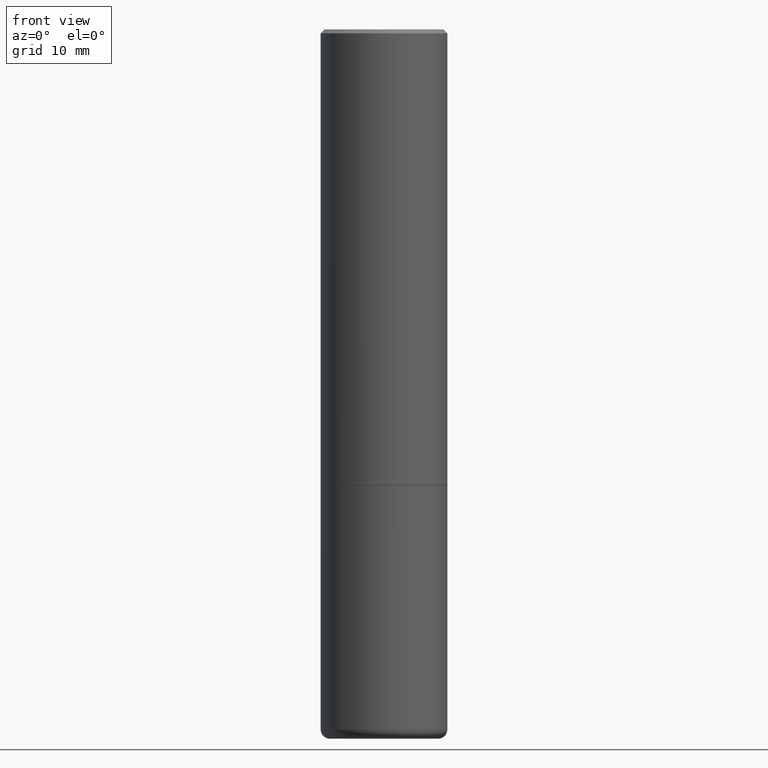
[diagram: clean part render]
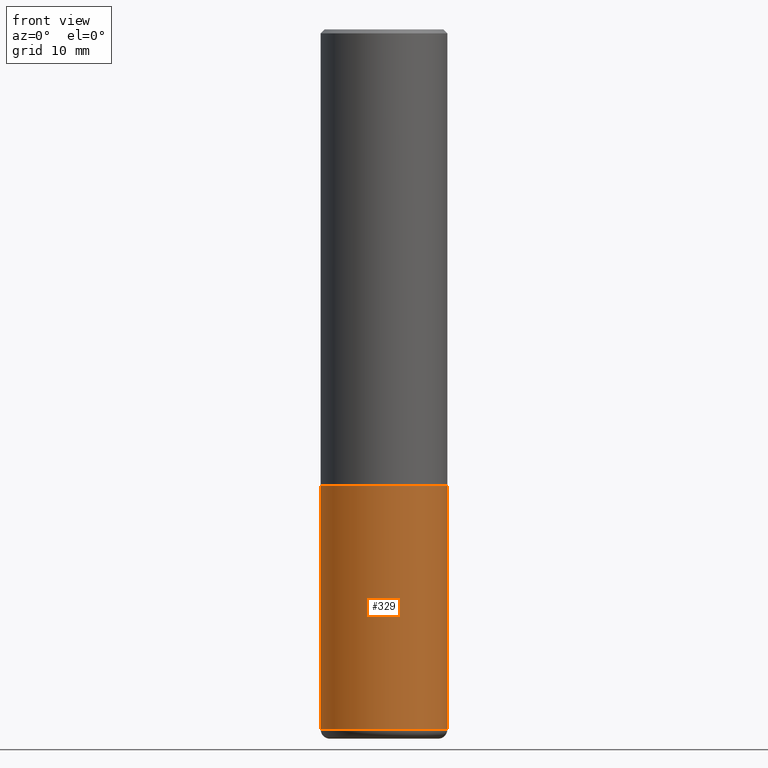
[diagram: same view with one face highlighted and labeled with its STEP entity id]
A machine part, front view. The second image highlights one B-rep face of the part: STEP entity #329.
In plain terms, the highlighted cylindrical surface (partial cylindrical patch) has radius 7.9375 mm, axis along (-0, 0, 1).
Its self-contained STEP definition (entity closure, byte-faithful):
#5 = CIRCLE ( 'NONE', #223, 0.3125000000000000000 ) ;
#10 = CARTESIAN_POINT ( 'NONE',  ( -0.3125000000000000000, -7.739112131260931893E-15, -3.455061670936044216 ) ) ;
#13 = EDGE_CURVE ( 'NONE', #442, #102, #303, .T. ) ;
#33 = ORIENTED_EDGE ( 'NONE', *, *, #13, .T. ) ;
#41 = CARTESIAN_POINT ( 'NONE',  ( -0.3125000000000000000, 2.220446049250313081E-15, -1.537167215704658232E-29 ) ) ;
#58 = ORIENTED_EDGE ( 'NONE', *, *, #365, .F. ) ;
#66 = CARTESIAN_POINT ( 'NONE',  ( -0.3125000000000000000, -7.739112131260931893E-15, -2.249999999999999556 ) ) ;
#102 = VERTEX_POINT ( 'NONE', #148 ) ;
#108 = DIRECTION ( 'NONE',  ( -2.445468806185136877E-29, 3.491481338843145188E-15, 1.000000000000000000 ) ) ;
#109 = DIRECTION ( 'NONE',  ( -2.445468806185136597E-29, 3.491481338843145583E-15, 1.000000000000000000 ) ) ;
#111 = CARTESIAN_POINT ( 'NONE',  ( 0.3125000000000000000, -2.182175836776958347E-15, 1.523805242436230075E-29 ) ) ;
#116 = DIRECTION ( 'NONE',  ( 1.000000000000000000, -6.982962677686269077E-15, 0.000000000000000000 ) ) ;
#123 = DIRECTION ( 'NONE',  ( -2.445468806185136597E-29, 3.491481338843145583E-15, 1.000000000000000000 ) ) ;
#124 = VECTOR ( 'NONE', #410, 39.37007874015748143 ) ;
#129 = DIRECTION ( 'NONE',  ( -2.445468806185136597E-29, 3.491481338843145583E-15, 1.000000000000000000 ) ) ;
#132 = ORIENTED_EDGE ( 'NONE', *, *, #372, .F. ) ;
#148 = CARTESIAN_POINT ( 'NONE',  ( 0.3125000000000000000, -1.424545918540237458E-14, -3.455061670936044216 ) ) ;
#159 = CYLINDRICAL_SURFACE ( 'NONE', #279, 0.3125000000000000000 ) ;
#171 = LINE ( 'NONE', #41, #272 ) ;
#191 = AXIS2_PLACEMENT_3D ( 'NONE', #274, #109, #116 ) ;
#223 = AXIS2_PLACEMENT_3D ( 'NONE', #257, #129, #378 ) ;
#257 = CARTESIAN_POINT ( 'NONE',  ( 5.502304813916556222E-29, -7.855833012397075293E-15, -2.249999999999999556 ) ) ;
#271 = ORIENTED_EDGE ( 'NONE', *, *, #401, .T. ) ;
#272 = VECTOR ( 'NONE', #108, 39.37007874015748143 ) ;
#274 = CARTESIAN_POINT ( 'NONE',  ( 8.449245539719989979E-29, -1.206328334862541465E-14, -3.455061670936044216 ) ) ;
#279 = AXIS2_PLACEMENT_3D ( 'NONE', #294, #123, #290 ) ;
#290 = DIRECTION ( 'NONE',  ( 1.000000000000000000, -6.982962677686266711E-15, 4.876176775795936353E-29 ) ) ;
#294 = CARTESIAN_POINT ( 'NONE',  ( 0.000000000000000000, 0.000000000000000000, 0.000000000000000000 ) ) ;
#303 = CIRCLE ( 'NONE', #191, 0.3125000000000000000 ) ;
#311 = LINE ( 'NONE', #111, #124 ) ;
#329 = ADVANCED_FACE ( 'NONE', ( #361 ), #159, .T. ) ;
#361 = FACE_OUTER_BOUND ( 'NONE', #368, .T. ) ;
#365 = EDGE_CURVE ( 'NONE', #440, #411, #5, .T. ) ;
#368 = EDGE_LOOP ( 'NONE', ( #132, #33, #271, #58 ) ) ;
#372 = EDGE_CURVE ( 'NONE', #442, #440, #171, .T. ) ;
#378 = DIRECTION ( 'NONE',  ( 1.000000000000000000, -6.982962677686265133E-15, 0.000000000000000000 ) ) ;
#384 = CARTESIAN_POINT ( 'NONE',  ( 0.3125000000000000000, -1.003800884917403364E-14, -2.249999999999999556 ) ) ;
#401 = EDGE_CURVE ( 'NONE', #102, #411, #311, .T. ) ;
#410 = DIRECTION ( 'NONE',  ( -2.445468806185136877E-29, 3.491481338843145188E-15, 1.000000000000000000 ) ) ;
#411 = VERTEX_POINT ( 'NONE', #384 ) ;
#440 = VERTEX_POINT ( 'NONE', #66 ) ;
#442 = VERTEX_POINT ( 'NONE', #10 ) ;